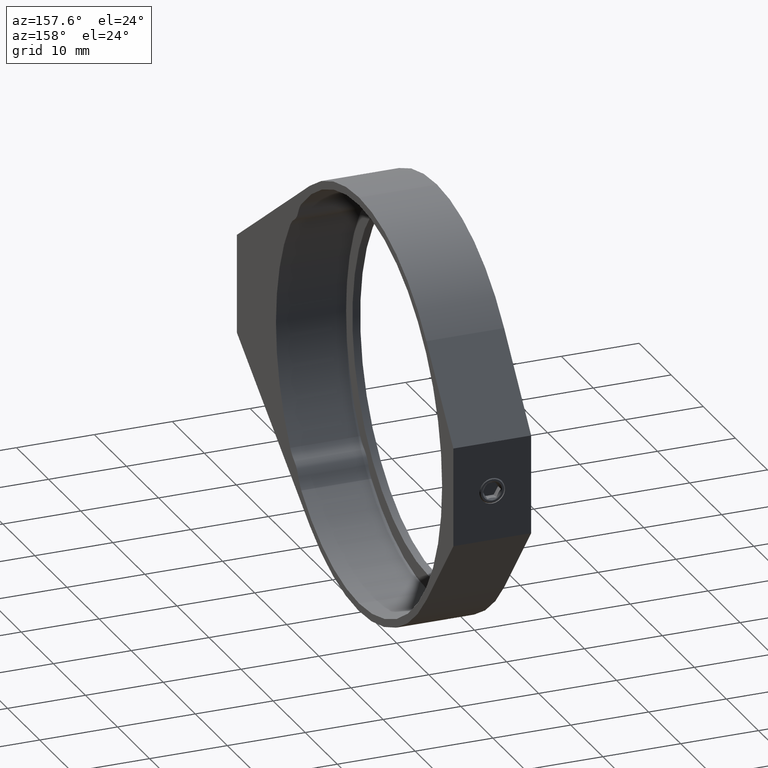
[diagram: clean part render]
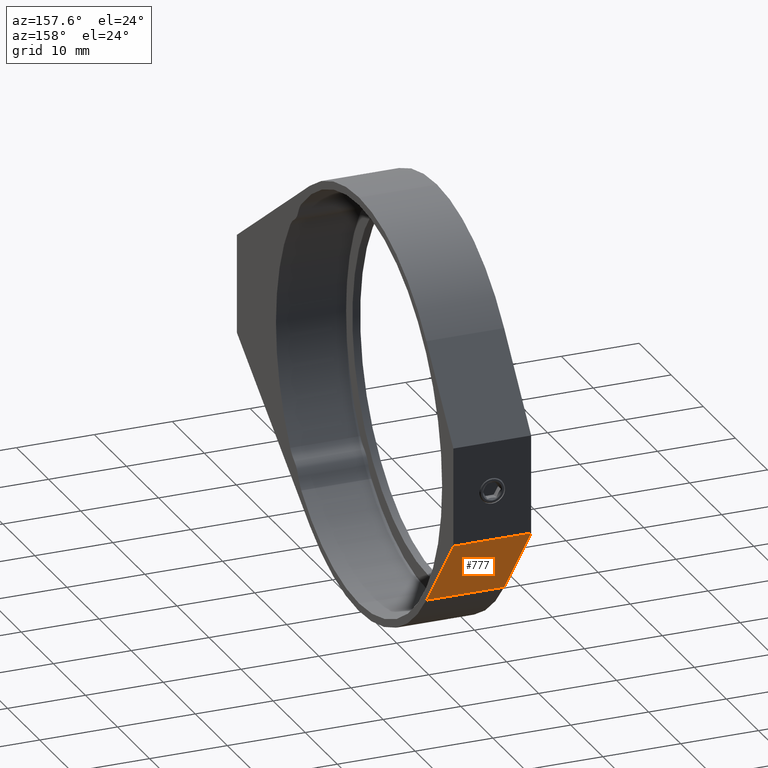
[diagram: same view with one face highlighted and labeled with its STEP entity id]
A machine part, auxiliary view. The second image highlights one B-rep face of the part: STEP entity #777.
In plain terms, the highlighted planar face has unit normal (0, -0.7797, 0.6261).
Its self-contained STEP definition (entity closure, byte-faithful):
#14 = LINE ( 'NONE', #607, #173 ) ;
#86 = CARTESIAN_POINT ( 'NONE',  ( -8.303370786516859781, 31.77247191011282368, 61.14999999999999147 ) ) ;
#93 = VERTEX_POINT ( 'NONE', #413 ) ;
#157 = DIRECTION ( 'NONE',  ( -1.000000000000000000, -0.0000000000000000000, -0.0000000000000000000 ) ) ;
#160 = CARTESIAN_POINT ( 'NONE',  ( -18.30337078651686156, 31.77247191011282368, 61.14999999999999147 ) ) ;
#173 = VECTOR ( 'NONE', #1410, 999.9999999999998863 ) ;
#272 = ORIENTED_EDGE ( 'NONE', *, *, #829, .T. ) ;
#300 = AXIS2_PLACEMENT_3D ( 'NONE', #86, #338, #555 ) ;
#338 = DIRECTION ( 'NONE',  ( 0.0000000000000000000, -0.7797347459599842656, 0.6261099950829078775 ) ) ;
#410 = CARTESIAN_POINT ( 'NONE',  ( -8.303370786516859781, 31.77247191011282368, 61.14999999999999147 ) ) ;
#413 = CARTESIAN_POINT ( 'NONE',  ( -18.30337078651686156, 23.34733657643639049, 50.65764113226976662 ) ) ;
#428 = VERTEX_POINT ( 'NONE', #545 ) ;
#467 = CARTESIAN_POINT ( 'NONE',  ( -8.303370786516859781, 23.34733657643639049, 50.65764113226976662 ) ) ;
#545 = CARTESIAN_POINT ( 'NONE',  ( -8.303370786516859781, 23.34733657643639049, 50.65764113226976662 ) ) ;
#555 = DIRECTION ( 'NONE',  ( 0.0000000000000000000, -0.6261099950829078775, -0.7797347459599842656 ) ) ;
#567 = ORIENTED_EDGE ( 'NONE', *, *, #838, .T. ) ;
#590 = DIRECTION ( 'NONE',  ( -1.000000000000000000, -0.0000000000000000000, -0.0000000000000000000 ) ) ;
#607 = CARTESIAN_POINT ( 'NONE',  ( -18.30337078651686156, 31.77247191011282368, 61.14999999999999147 ) ) ;
#641 = VECTOR ( 'NONE', #590, 1000.000000000000000 ) ;
#666 = EDGE_CURVE ( 'NONE', #428, #791, #1459, .T. ) ;
#696 = VERTEX_POINT ( 'NONE', #160 ) ;
#705 = ORIENTED_EDGE ( 'NONE', *, *, #666, .F. ) ;
#718 = EDGE_LOOP ( 'NONE', ( #567, #1299, #705, #272 ) ) ;
#777 = ADVANCED_FACE ( 'NONE', ( #1141 ), #1270, .F. ) ;
#791 = VERTEX_POINT ( 'NONE', #1244 ) ;
#829 = EDGE_CURVE ( 'NONE', #428, #93, #944, .T. ) ;
#838 = EDGE_CURVE ( 'NONE', #93, #696, #14, .T. ) ;
#855 = LINE ( 'NONE', #858, #1513 ) ;
#858 = CARTESIAN_POINT ( 'NONE',  ( -8.303370786516859781, 31.77247191011282368, 61.14999999999999147 ) ) ;
#944 = LINE ( 'NONE', #467, #641 ) ;
#947 = DIRECTION ( 'NONE',  ( -0.0000000000000000000, 0.6261099950829078775, 0.7797347459599842656 ) ) ;
#1028 = EDGE_CURVE ( 'NONE', #791, #696, #855, .T. ) ;
#1141 = FACE_OUTER_BOUND ( 'NONE', #718, .T. ) ;
#1244 = CARTESIAN_POINT ( 'NONE',  ( -8.303370786516859781, 31.77247191011282368, 61.14999999999999147 ) ) ;
#1270 = PLANE ( 'NONE',  #300 ) ;
#1299 = ORIENTED_EDGE ( 'NONE', *, *, #1028, .F. ) ;
#1410 = DIRECTION ( 'NONE',  ( -0.0000000000000000000, 0.6261099950829078775, 0.7797347459599842656 ) ) ;
#1459 = LINE ( 'NONE', #410, #1486 ) ;
#1486 = VECTOR ( 'NONE', #947, 999.9999999999998863 ) ;
#1513 = VECTOR ( 'NONE', #157, 1000.000000000000000 ) ;